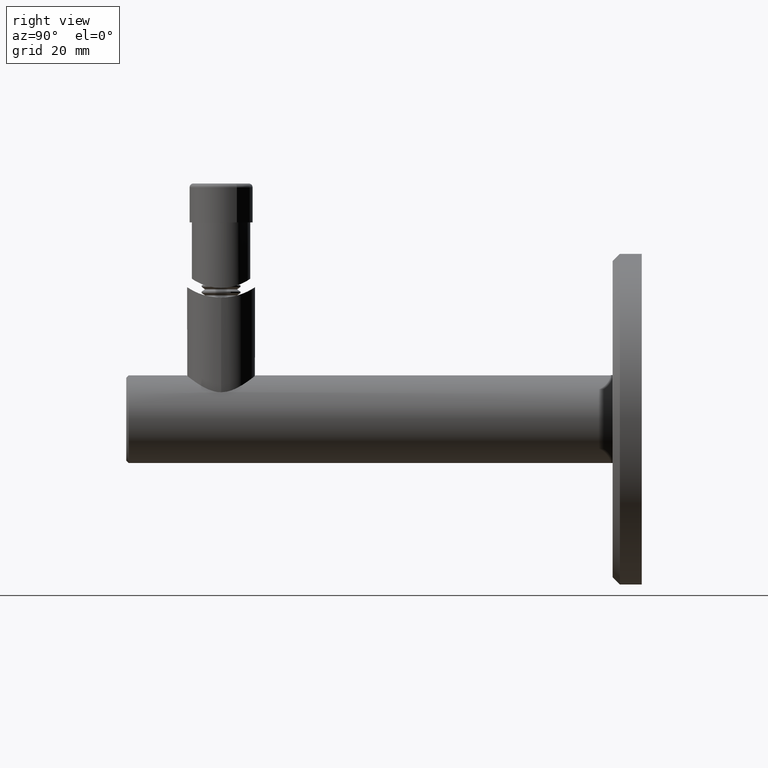
[diagram: clean part render]
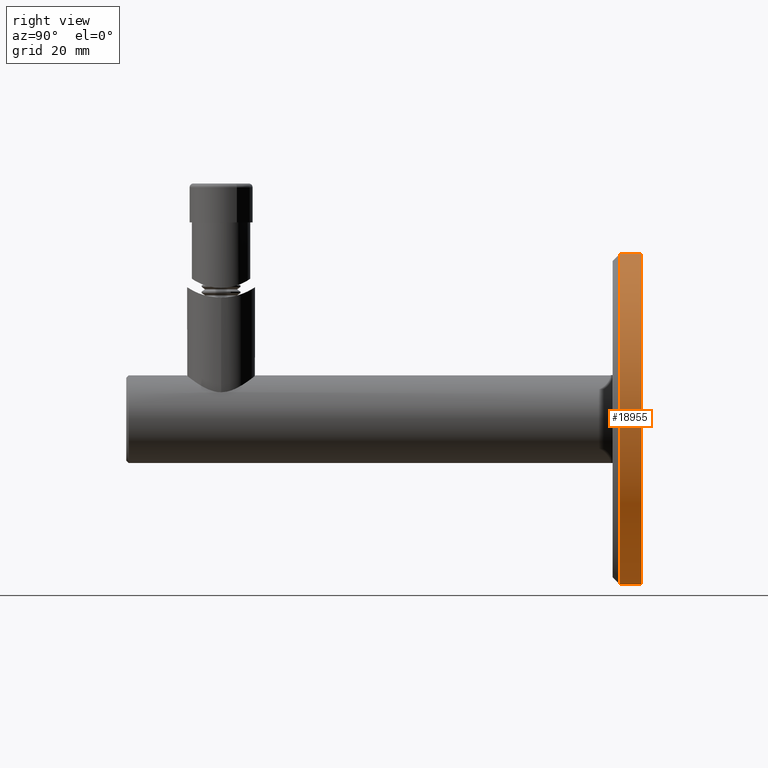
[diagram: same view with one face highlighted and labeled with its STEP entity id]
A machine part, right view. The second image highlights one B-rep face of the part: STEP entity #18955.
In plain terms, the highlighted cylindrical surface (partial cylindrical patch) has radius 34 mm, axis along (0, 1, 0).
Its self-contained STEP definition (entity closure, byte-faithful):
#492 = CARTESIAN_POINT ( 'NONE',  ( 0.000000000000000000, 0.000000000000000000, 1.499999999999984901 ) ) ;
#4079 = AXIS2_PLACEMENT_3D ( 'NONE', #13819, #21945, #20039 ) ;
#4101 = CARTESIAN_POINT ( 'NONE',  ( 34.00000000000000000, 4.163799117101000559E-15, -3.000000000000000000 ) ) ;
#4750 = ORIENTED_EDGE ( 'NONE', *, *, #23964, .F. ) ;
#4934 = AXIS2_PLACEMENT_3D ( 'NONE', #492, #20653, #5271 ) ;
#5076 = DIRECTION ( 'NONE',  ( 0.000000000000000000, 0.000000000000000000, -1.000000000000000000 ) ) ;
#5271 = DIRECTION ( 'NONE',  ( 1.000000000000000000, 0.000000000000000000, 0.000000000000000000 ) ) ;
#6692 = VECTOR ( 'NONE', #22343, 1000.000000000000000 ) ;
#6987 = VERTEX_POINT ( 'NONE', #13937 ) ;
#7289 = VERTEX_POINT ( 'NONE', #19768 ) ;
#8186 = LINE ( 'NONE', #22259, #6692 ) ;
#8768 = EDGE_LOOP ( 'NONE', ( #12154, #12515, #11871, #4750 ) ) ;
#9317 = CIRCLE ( 'NONE', #4934, 34.00000000000000000 ) ;
#9548 = CARTESIAN_POINT ( 'NONE',  ( 0.000000000000000000, 0.000000000000000000, 3.000000000000000000 ) ) ;
#10652 = CARTESIAN_POINT ( 'NONE',  ( -34.00000000000000000, 0.000000000000000000, 1.499999999999984901 ) ) ;
#11157 = EDGE_CURVE ( 'NONE', #7289, #12745, #8186, .T. ) ;
#11871 = ORIENTED_EDGE ( 'NONE', *, *, #18521, .T. ) ;
#12154 = ORIENTED_EDGE ( 'NONE', *, *, #19223, .T. ) ;
#12515 = ORIENTED_EDGE ( 'NONE', *, *, #11157, .T. ) ;
#12745 = VERTEX_POINT ( 'NONE', #4101 ) ;
#13819 = CARTESIAN_POINT ( 'NONE',  ( 0.000000000000000000, 0.000000000000000000, -3.000000000000000000 ) ) ;
#13937 = CARTESIAN_POINT ( 'NONE',  ( -34.00000000000000000, 0.000000000000000000, -3.000000000000000000 ) ) ;
#14584 = LINE ( 'NONE', #24687, #25053 ) ;
#17504 = DIRECTION ( 'NONE',  ( -1.000000000000000000, 0.000000000000000000, 0.000000000000000000 ) ) ;
#18521 = EDGE_CURVE ( 'NONE', #12745, #6987, #19506, .T. ) ;
#18955 = ADVANCED_FACE ( 'NONE', ( #21992 ), #19485, .T. ) ;
#19223 = EDGE_CURVE ( 'NONE', #25036, #7289, #9317, .T. ) ;
#19395 = DIRECTION ( 'NONE',  ( 0.000000000000000000, 0.000000000000000000, -1.000000000000000000 ) ) ;
#19485 = CYLINDRICAL_SURFACE ( 'NONE', #23899, 34.00000000000000000 ) ;
#19506 = CIRCLE ( 'NONE', #4079, 34.00000000000000000 ) ;
#19768 = CARTESIAN_POINT ( 'NONE',  ( 34.00000000000000000, 4.163799117101000559E-15, 1.499999999999984901 ) ) ;
#20039 = DIRECTION ( 'NONE',  ( 1.000000000000000000, 0.000000000000000000, 0.000000000000000000 ) ) ;
#20653 = DIRECTION ( 'NONE',  ( -0.000000000000000000, -0.000000000000000000, -1.000000000000000000 ) ) ;
#21945 = DIRECTION ( 'NONE',  ( 0.000000000000000000, 0.000000000000000000, 1.000000000000000000 ) ) ;
#21992 = FACE_OUTER_BOUND ( 'NONE', #8768, .T. ) ;
#22259 = CARTESIAN_POINT ( 'NONE',  ( 34.00000000000000000, 4.163799117101000559E-15, 3.000000000000000000 ) ) ;
#22343 = DIRECTION ( 'NONE',  ( 0.000000000000000000, 0.000000000000000000, -1.000000000000000000 ) ) ;
#23899 = AXIS2_PLACEMENT_3D ( 'NONE', #9548, #19395, #17504 ) ;
#23964 = EDGE_CURVE ( 'NONE', #25036, #6987, #14584, .T. ) ;
#24687 = CARTESIAN_POINT ( 'NONE',  ( -34.00000000000000000, 0.000000000000000000, 3.000000000000000000 ) ) ;
#25036 = VERTEX_POINT ( 'NONE', #10652 ) ;
#25053 = VECTOR ( 'NONE', #5076, 1000.000000000000000 ) ;